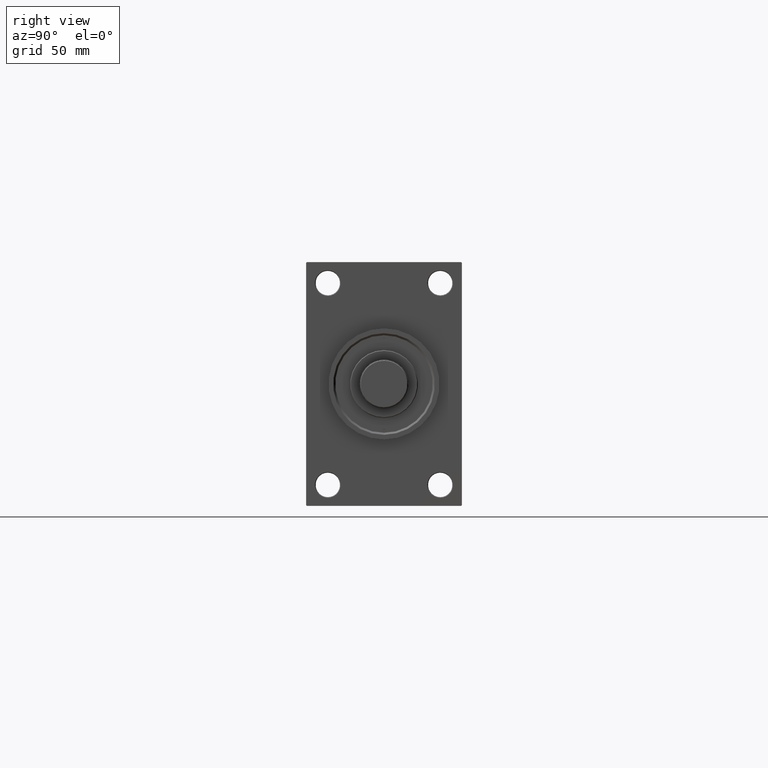
[diagram: clean part render]
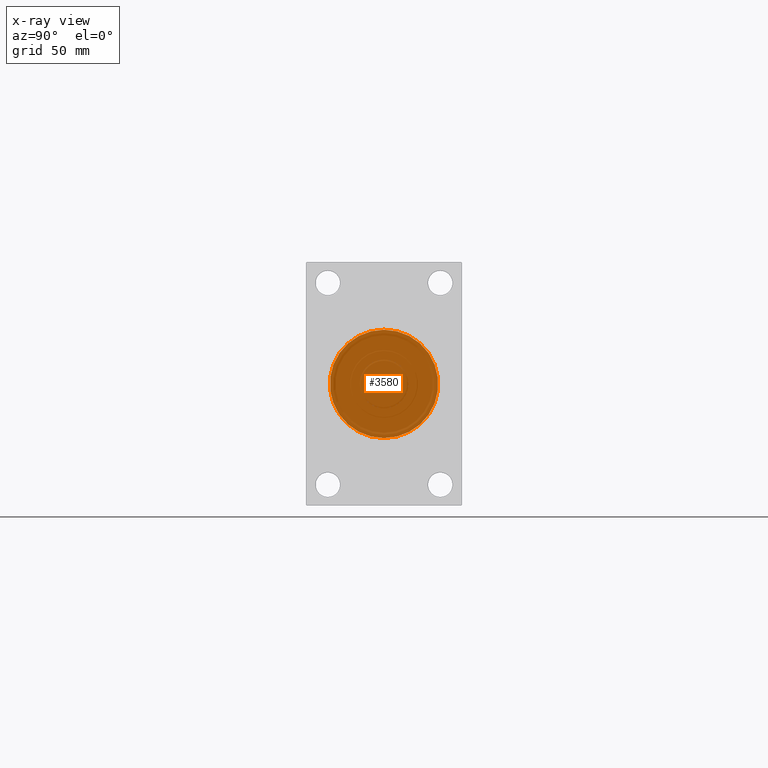
[diagram: x-ray — body ghosted, one internal face saturated and labeled with its STEP entity id]
A machine part, right view, then the same camera in x-ray: the body is ghosted and one INTERNAL B-rep face — a face not visible from any outside direction — is saturated and labeled: STEP entity #3580.
In plain terms, the highlighted planar face has unit normal (-1, 0, 0).
Its self-contained STEP definition (entity closure, byte-faithful):
#792 = FACE_OUTER_BOUND ( 'NONE', #26015, .T. ) ;
#1771 = DIRECTION ( 'NONE',  ( 0.000000000000000000, 0.000000000000000000, 1.000000000000000000 ) ) ;
#2501 = DIRECTION ( 'NONE',  ( 1.000000000000000000, 0.000000000000000000, 0.000000000000000000 ) ) ;
#3032 = VERTEX_POINT ( 'NONE', #12877 ) ;
#3580 = ADVANCED_FACE ( 'NONE', ( #792, #11313 ), #38444, .F. ) ;
#4055 = VERTEX_POINT ( 'NONE', #18236 ) ;
#5758 = EDGE_CURVE ( 'NONE', #35827, #3032, #40172, .T. ) ;
#6043 = ORIENTED_EDGE ( 'NONE', *, *, #10766, .T. ) ;
#8589 = DIRECTION ( 'NONE',  ( -1.000000000000000000, 0.000000000000000000, -0.000000000000000000 ) ) ;
#9344 = DIRECTION ( 'NONE',  ( 0.000000000000000000, 0.000000000000000000, -1.000000000000000000 ) ) ;
#10766 = EDGE_CURVE ( 'NONE', #13331, #4055, #38784, .T. ) ;
#11313 = FACE_BOUND ( 'NONE', #29130, .T. ) ;
#12877 = CARTESIAN_POINT ( 'NONE',  ( 44.00000000000000000, -2.602085213965210642E-15, 40.00000000000000000 ) ) ;
#13331 = VERTEX_POINT ( 'NONE', #38686 ) ;
#14450 = DIRECTION ( 'NONE',  ( 1.000000000000000000, 0.000000000000000000, 0.000000000000000000 ) ) ;
#15701 = CARTESIAN_POINT ( 'NONE',  ( 44.00000000000000000, 0.000000000000000000, 0.000000000000000000 ) ) ;
#16110 = AXIS2_PLACEMENT_3D ( 'NONE', #47227, #31594, #1771 ) ;
#18236 = CARTESIAN_POINT ( 'NONE',  ( 44.00000000000001421, 0.000000000000000000, 3.500000000000000000 ) ) ;
#18247 = DIRECTION ( 'NONE',  ( -1.000000000000000000, 0.000000000000000000, -0.000000000000000000 ) ) ;
#19460 = ORIENTED_EDGE ( 'NONE', *, *, #5758, .T. ) ;
#20981 = CARTESIAN_POINT ( 'NONE',  ( 44.00000000000000000, 2.296501982624201990E-15, -40.00000000000000000 ) ) ;
#22269 = DIRECTION ( 'NONE',  ( 0.000000000000000000, 0.000000000000000000, -1.000000000000000000 ) ) ;
#23579 = EDGE_CURVE ( 'NONE', #4055, #13331, #43704, .T. ) ;
#25928 = CARTESIAN_POINT ( 'NONE',  ( 44.00000000000000000, -2.602085213965210642E-15, 0.000000000000000000 ) ) ;
#26015 = EDGE_LOOP ( 'NONE', ( #44295, #19460 ) ) ;
#27897 = ORIENTED_EDGE ( 'NONE', *, *, #23579, .T. ) ;
#29130 = EDGE_LOOP ( 'NONE', ( #27897, #6043 ) ) ;
#29244 = DIRECTION ( 'NONE',  ( 0.000000000000000000, 0.000000000000000000, 1.000000000000000000 ) ) ;
#30985 = CIRCLE ( 'NONE', #38048, 40.00000000000000000 ) ;
#31510 = AXIS2_PLACEMENT_3D ( 'NONE', #15701, #8589, #34041 ) ;
#31594 = DIRECTION ( 'NONE',  ( -1.000000000000000000, 0.000000000000000000, -0.000000000000000000 ) ) ;
#33163 = CARTESIAN_POINT ( 'NONE',  ( 44.00000000000001421, 0.000000000000000000, 0.000000000000000000 ) ) ;
#34041 = DIRECTION ( 'NONE',  ( -0.000000000000000000, 0.000000000000000000, 1.000000000000000000 ) ) ;
#35827 = VERTEX_POINT ( 'NONE', #20981 ) ;
#38048 = AXIS2_PLACEMENT_3D ( 'NONE', #25928, #14450, #22269 ) ;
#38444 = PLANE ( 'NONE',  #31510 ) ;
#38686 = CARTESIAN_POINT ( 'NONE',  ( 44.00000000000001421, 4.286263797015736595E-16, -3.500000000000000000 ) ) ;
#38784 = CIRCLE ( 'NONE', #16110, 3.500000000000000000 ) ;
#38991 = AXIS2_PLACEMENT_3D ( 'NONE', #33163, #18247, #29244 ) ;
#40172 = CIRCLE ( 'NONE', #40942, 40.00000000000000000 ) ;
#40942 = AXIS2_PLACEMENT_3D ( 'NONE', #43119, #2501, #9344 ) ;
#43119 = CARTESIAN_POINT ( 'NONE',  ( 44.00000000000000000, -2.602085213965210642E-15, 0.000000000000000000 ) ) ;
#43704 = CIRCLE ( 'NONE', #38991, 3.500000000000000000 ) ;
#44295 = ORIENTED_EDGE ( 'NONE', *, *, #47982, .T. ) ;
#47227 = CARTESIAN_POINT ( 'NONE',  ( 44.00000000000001421, 0.000000000000000000, 0.000000000000000000 ) ) ;
#47982 = EDGE_CURVE ( 'NONE', #3032, #35827, #30985, .T. ) ;